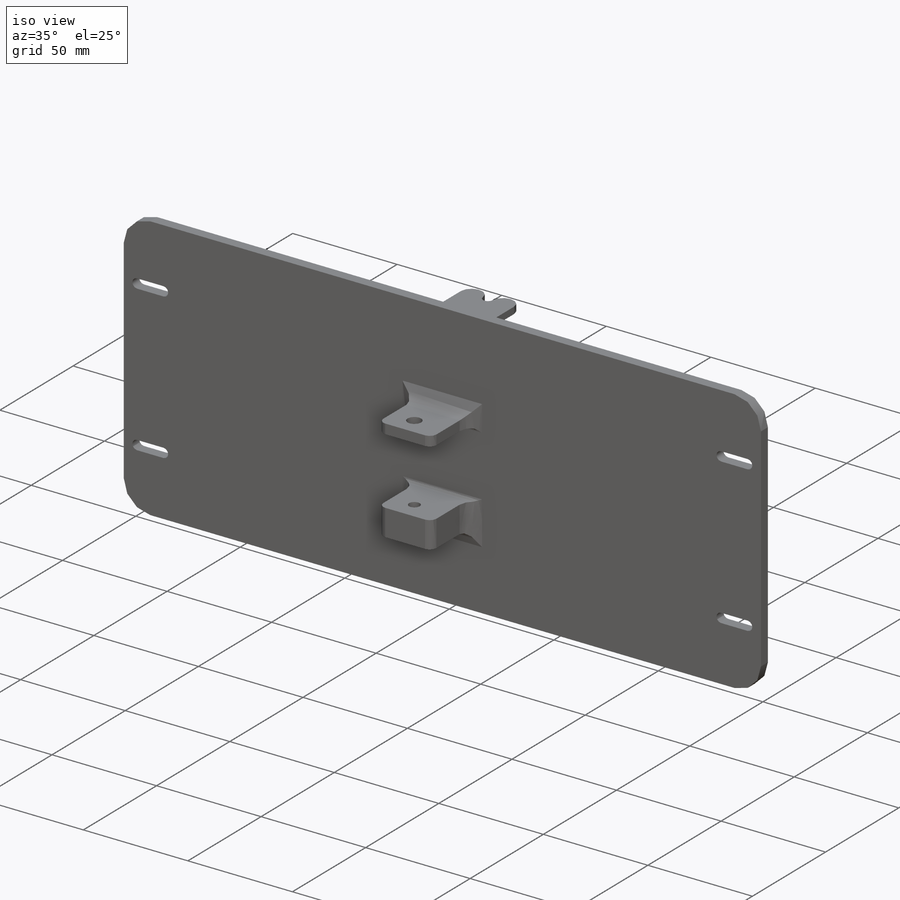
[diagram: iso view]
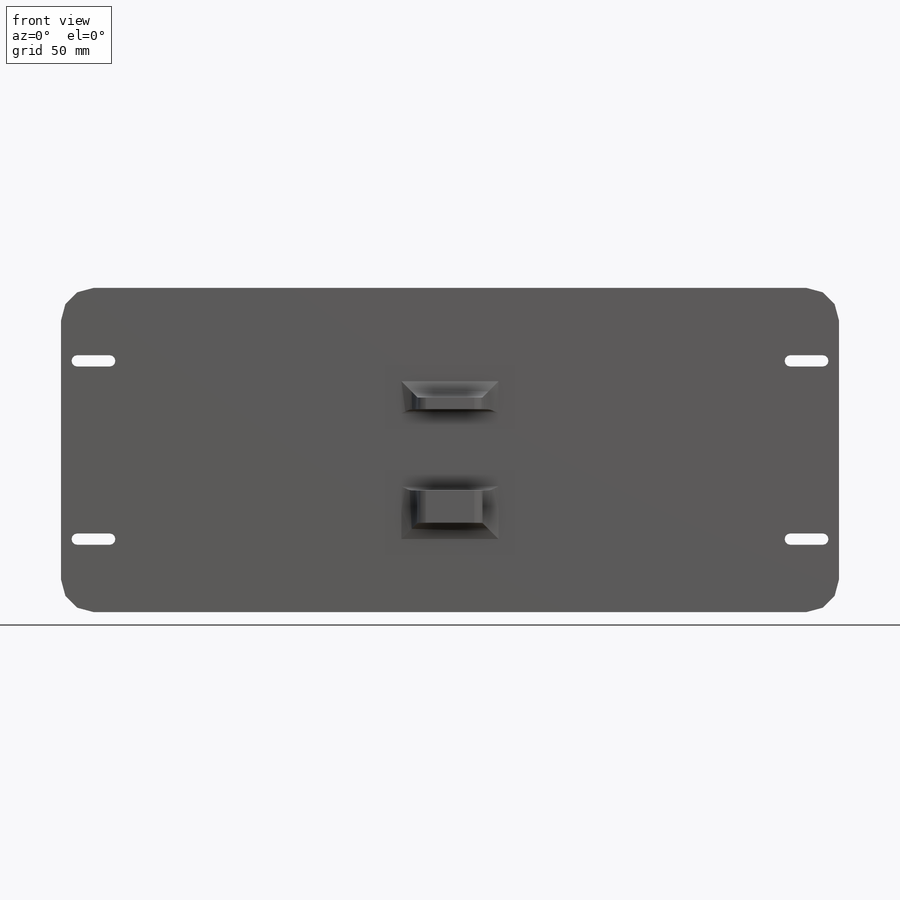
[diagram: front view]
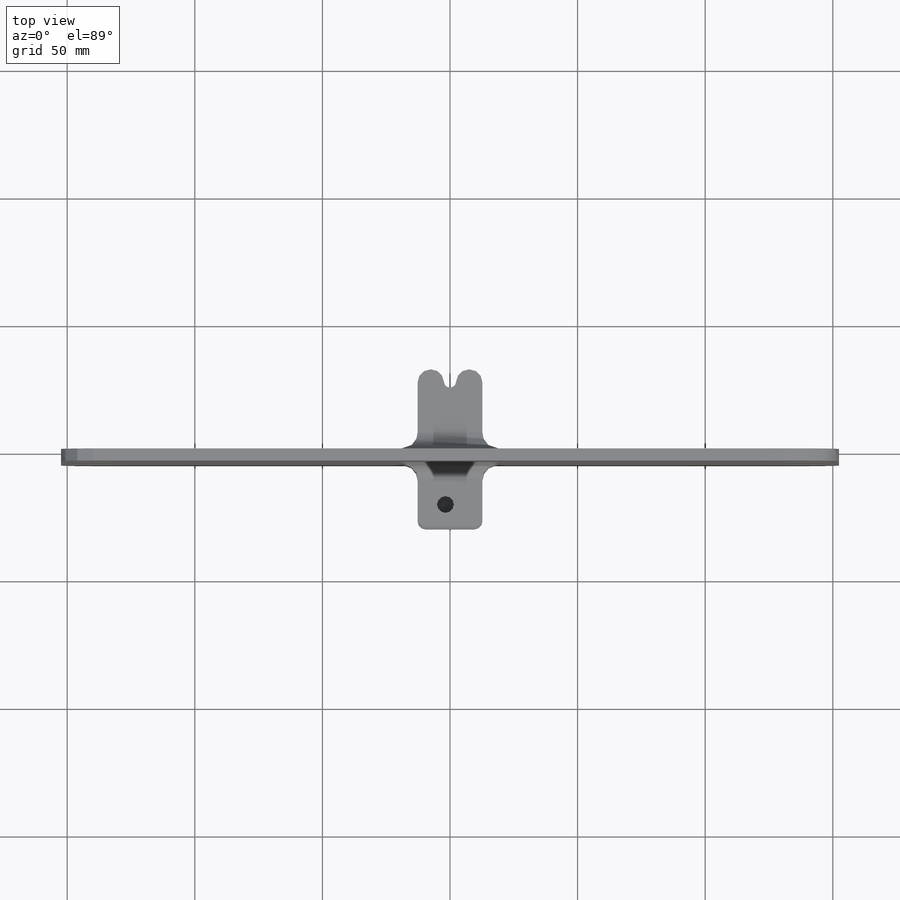
[diagram: top view]
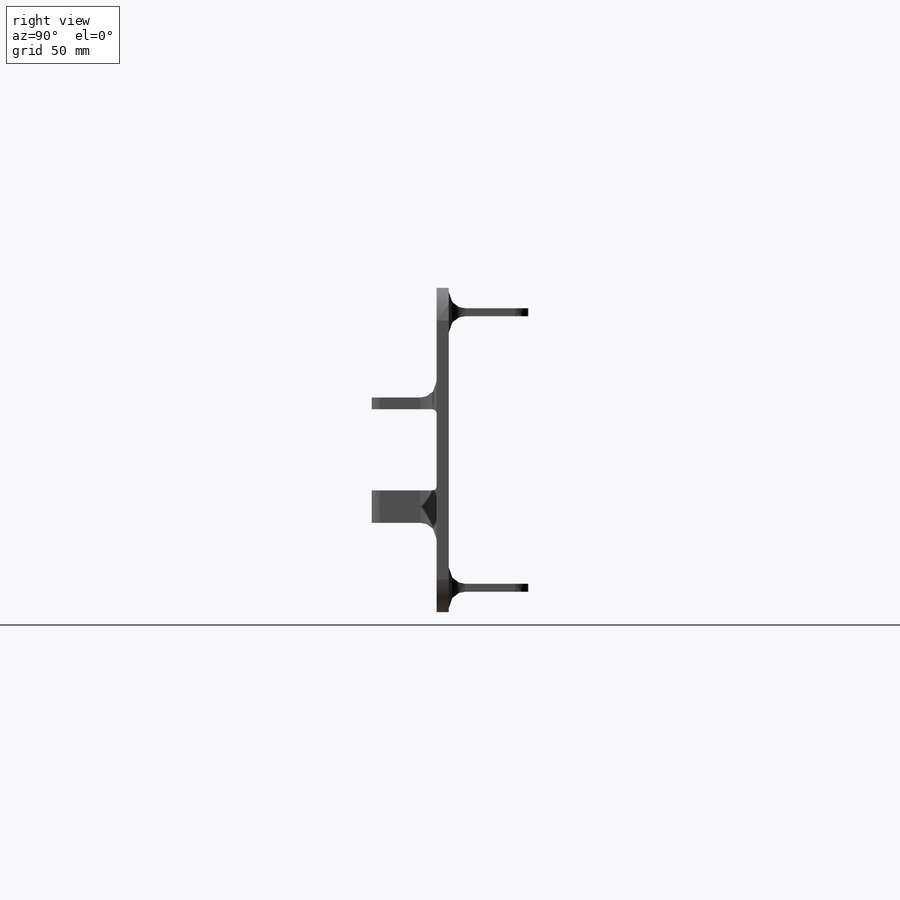
[diagram: right view]
SOLIDWORKS PART (.sldprt)
format: sldprt  version: not decoded by parser v0  size: 632,832 bytes
history: native  units: mm
features: sketch x14, fillet x10, extrude x4, cut_extrude x3, hole x3, pattern_linear x3, material x1 + 1 further entry (+12 scaffold rows collapsed)
feature tree (51):
  scaffold x12  (default folders/planes/origin — collapsed)
  material  "6061-T6 (SS)"
  "Origin"  ID=-1
  sketch  "Sketch1"  dims[D1=152.4mm D2=304.8mm D3=63.5mm D4=127.0mm]
  extrude  "Boss-Extrude1"  Depth=4.7625mm
  sketch  "Sketch2"  dims[D1=3.175mm D2=25.4mm D3=12.7mm D4=53.975mm]
  extrude  "Boss-Extrude2"  Depth=31.115mm
  sketch  "Sketch3"  dims[D2=~2.38125mm D1=4.7625mm D3=4.7625mm D4=4.7625mm]
  cut_extrude  "Cut-Extrude1"  Depth=127mm
  fillet  "Fillet1"  Radius=5.08mm
  sketch  "Sketch4"  dims[D1=12.7mm D2=38.1mm D3=19.05mm D4=53.975mm]
  hole  "#8-32 Tapped Hole1"  Diameter=3.4544mm Depth=3.175mm
  sketch  "Sketch6"  dims[D1=12.7mm D2=28.575mm]
  sketch  "Sketch5"  dims[hole-wizard template sketch: 60 standard entries collapsed; hole parameters kept: c18.Thru Tap Drill Depth=3.175mm]
  pattern_linear  "LPattern1"  Count1=2 Count2=2 Spacing1=279.4mm Spacing2=69.85mm
  fillet  "Fillet2"  Radius=12.7mm
  fillet  "Fillet4"  Radius=6.35mm
  sketch  "Sketch7"  dims[c1.D1=~1.999413mm c1.D3=2.2225mm c2.D1=12.7mm c2.D2=28.575mm c2.D4=12.7mm c3.D1=139.7mm]
  cut_extrude  "Cut-Extrude2"  [1 undecoded]
  pattern_linear  "LPattern2"  Count1=2 Count2=2 Spacing1=279.4mm Spacing2=69.85mm
  sketch  "Sketch8"  dims[D1=12.7mm D2=4.6355mm D3=~31.79445mm D4=~15.84325mm D5=25.4mm D6=25.4mm D7=12.7mm D8=12.7mm]
  extrude  "Boss-Extrude3"  Depth=25.4mm
  sketch  "Sketch9"  dims[c1.D2=6.35mm c1.D1=~3.529035mm c1.D4=6.604mm c2.D1=~10.060381mm c2.D3=25.4mm c3.D3=97.17deg c3.D1=8.89mm c3.D2=~0.856402mm]
  cut_extrude  "Cut-Extrude3"  [1 undecoded]
  hole  "13/64 (0.20313) Diameter Hole1"  Diameter=5.159502mm Depth=9.0678mm
  sketch  "Sketch11"  dims[D1=8.89mm D2=~14.512886mm]
  sketch  "Sketch10"  dims[hole-wizard template sketch: 46 standard entries collapsed; hole parameters kept: c15.Hole Dia.=~5.159502mm c15.Hole Depth=9.0678mm c15.D3=~14.816244mm c15.Drill Angle=118.0deg]
  fillet  "Fillet5"  Radius=6.35mm
  fillet  "Fillet6"  Radius=3.175mm
  fillet  "Fillet7"  Radius=1.5875mm
  sketch  "Sketch12"  dims[D1=12.7mm D2=6.35mm D3=31.75mm D4=12.7mm]
  extrude  "Boss-Extrude4"  Depth=7.9375mm
  hole  "#17 (0.173) Diameter Hole1"  Diameter=4.3942mm Depth=9.4234mm
  sketch  "Sketch14"  dims[D1=38.1mm D2=34.925mm]
  sketch  "Sketch13"  dims[hole-wizard template sketch: 46 standard entries collapsed; hole parameters kept: c15.Hole Dia.=4.3942mm c15.Hole Depth=9.4234mm c15.D3=~14.816244mm c15.Drill Angle=118.0deg]
  pattern_linear  "LPattern3"  Count1=2 Count2=1 Spacing1=69.85mm Spacing2=2.54mm
  fillet  "Fillet8"  Radius=3.175mm
  fillet  "Fillet9"  Radius=3.175mm
  fillet  "Fillet10"  Radius=3.175mm
  fillet  "Fillet11"  Radius=6.35mm
decode coverage: 35 of 37 modeling features carry decoded parameters; 1 rows unclassified (native names shown)
note: ~ marks probable driven/reference dimensions
note: 2 parameter values undecoded
note: suppression state not decoded; provenance and decode notes live in map.json
